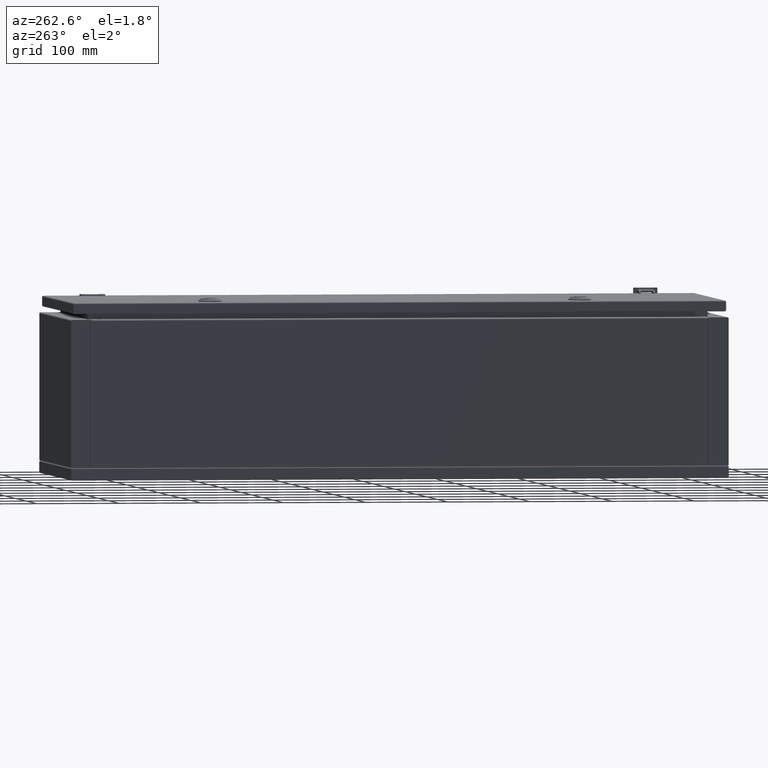
[diagram: clean part render]
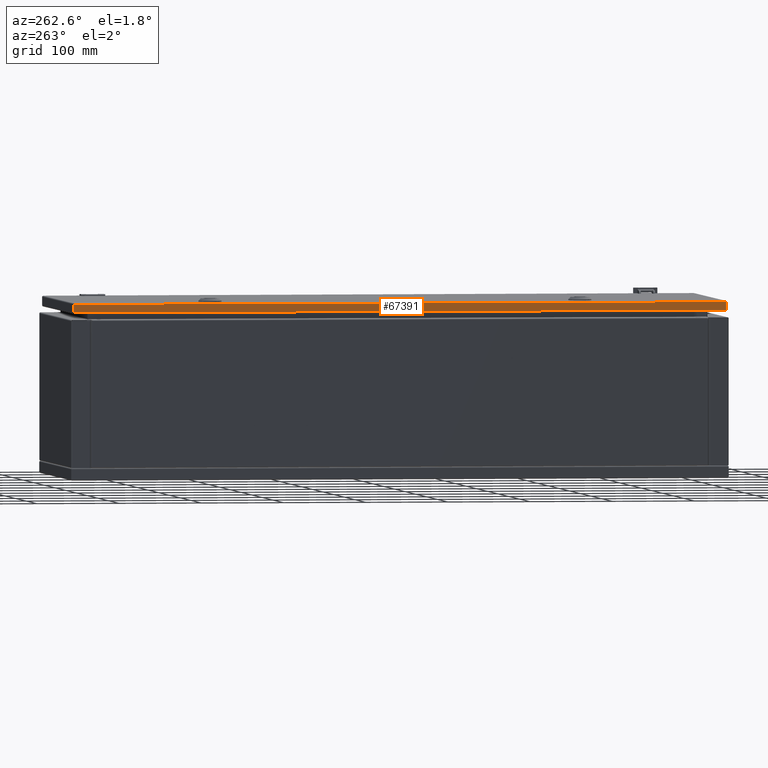
[diagram: same view with one face highlighted and labeled with its STEP entity id]
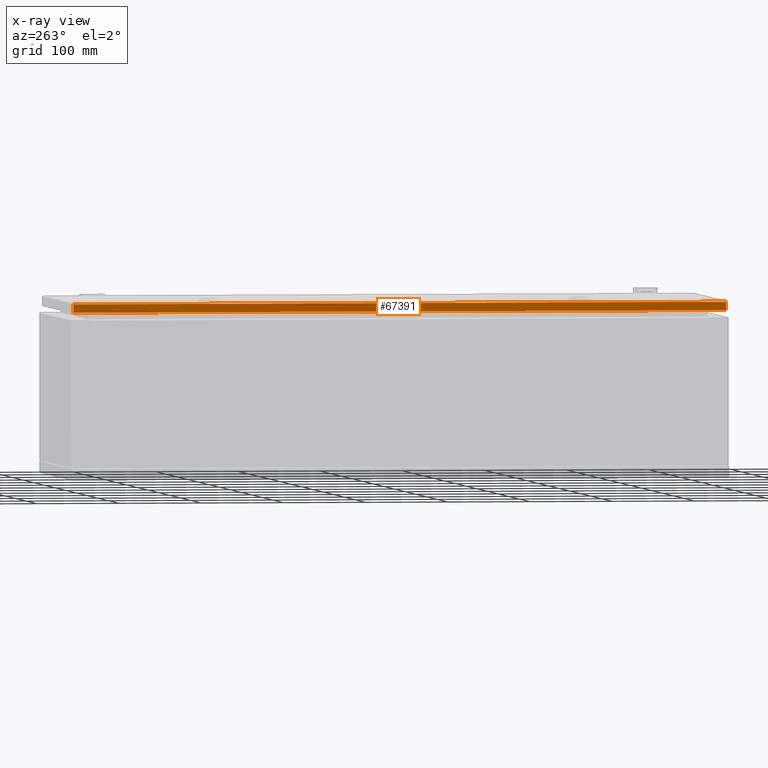
[diagram: x-ray of the same camera — body ghosted, the highlighted face saturated]
A machine part, auxiliary view. The second image highlights one B-rep face of the part: STEP entity #67391.
The next image is the same camera in x-ray: the body ghosted, the highlighted face saturated — about 0% of this face is hidden behind the body in this view.
In plain terms, the highlighted planar face has unit normal (1, -0, -0).
Its self-contained STEP definition (entity closure, byte-faithful):
#852 = CARTESIAN_POINT ( 'NONE',  ( -147.0000000000922000, -0.1000000000109500000, 212.1000000000040000 ) ) ;
#3734 = LINE ( 'NONE', #18756, #46497 ) ;
#5749 = CARTESIAN_POINT ( 'NONE',  ( -147.0000000000893900, 396.8999999999884900, 211.6000000000050000 ) ) ;
#10172 = CARTESIAN_POINT ( 'NONE',  ( -147.0000000000953800, -397.1000000000109900, 211.6000000000000200 ) ) ;
#16381 = PLANE ( 'NONE',  #19721 ) ;
#18756 = CARTESIAN_POINT ( 'NONE',  ( -147.0000000000893900, 395.5464466093955000, 201.6000000000050000 ) ) ;
#19261 = CARTESIAN_POINT ( 'NONE',  ( -147.0000000000953800, -397.1000000000109900, 211.6000000000000200 ) ) ;
#19721 = AXIS2_PLACEMENT_3D ( 'NONE', #852, #57561, #70986 ) ;
#30409 = LINE ( 'NONE', #19261, #53997 ) ;
#34543 = CARTESIAN_POINT ( 'NONE',  ( -147.0000000000955800, -397.1000000000109900, 201.5999999999999900 ) ) ;
#38250 = EDGE_CURVE ( 'NONE', #84969, #54268, #71612, .T. ) ;
#39071 = DIRECTION ( 'NONE',  ( -1.805500193796660200E-014, 3.926495786431240000E-015, -1.000000000000000000 ) ) ;
#39565 = DIRECTION ( 'NONE',  ( -7.617910074183500500E-015, -1.000000000000000000, -3.891539142078925700E-015 ) ) ;
#40083 = VECTOR ( 'NONE', #39071, 1000.000000000000000 ) ;
#41245 = CARTESIAN_POINT ( 'NONE',  ( -147.0000000000953800, -397.1000000000109900, 211.6000000000000200 ) ) ;
#46497 = VECTOR ( 'NONE', #52251, 1000.000000000000000 ) ;
#49570 = VERTEX_POINT ( 'NONE', #5749 ) ;
#50826 = EDGE_LOOP ( 'NONE', ( #54829, #87310, #74714, #54817 ) ) ;
#52251 = DIRECTION ( 'NONE',  ( -7.617910074183500500E-015, -1.000000000000000000, -3.926495786431100300E-015 ) ) ;
#52404 = VECTOR ( 'NONE', #71961, 1000.000000000000000 ) ;
#53997 = VECTOR ( 'NONE', #39565, 1000.000000000000000 ) ;
#54268 = VERTEX_POINT ( 'NONE', #34543 ) ;
#54374 = FACE_OUTER_BOUND ( 'NONE', #50826, .T. ) ;
#54817 = ORIENTED_EDGE ( 'NONE', *, *, #71164, .T. ) ;
#54829 = ORIENTED_EDGE ( 'NONE', *, *, #71219, .T. ) ;
#57561 = DIRECTION ( 'NONE',  ( 1.000000000000000000, -7.617910074183431100E-015, -1.712981608411232900E-014 ) ) ;
#65947 = CARTESIAN_POINT ( 'NONE',  ( -147.0000000000891900, 396.8999999999890100, 211.6000000000050000 ) ) ;
#67391 = ADVANCED_FACE ( 'NONE', ( #54374 ), #16381, .F. ) ;
#70520 = VERTEX_POINT ( 'NONE', #71977 ) ;
#70986 = DIRECTION ( 'NONE',  ( -1.712981608411230100E-014, 3.926495786431230500E-015, -1.000000000000000000 ) ) ;
#71164 = EDGE_CURVE ( 'NONE', #49570, #70520, #88149, .T. ) ;
#71219 = EDGE_CURVE ( 'NONE', #70520, #54268, #3734, .T. ) ;
#71612 = LINE ( 'NONE', #10172, #52404 ) ;
#71961 = DIRECTION ( 'NONE',  ( -1.805500193796665200E-014, -1.624619336694555000E-015, -1.000000000000000000 ) ) ;
#71977 = CARTESIAN_POINT ( 'NONE',  ( -147.0000000000895900, 396.8999999999890100, 201.6000000000050000 ) ) ;
#74714 = ORIENTED_EDGE ( 'NONE', *, *, #78522, .F. ) ;
#78522 = EDGE_CURVE ( 'NONE', #49570, #84969, #30409, .T. ) ;
#84969 = VERTEX_POINT ( 'NONE', #41245 ) ;
#87310 = ORIENTED_EDGE ( 'NONE', *, *, #38250, .F. ) ;
#88149 = LINE ( 'NONE', #65947, #40083 ) ;